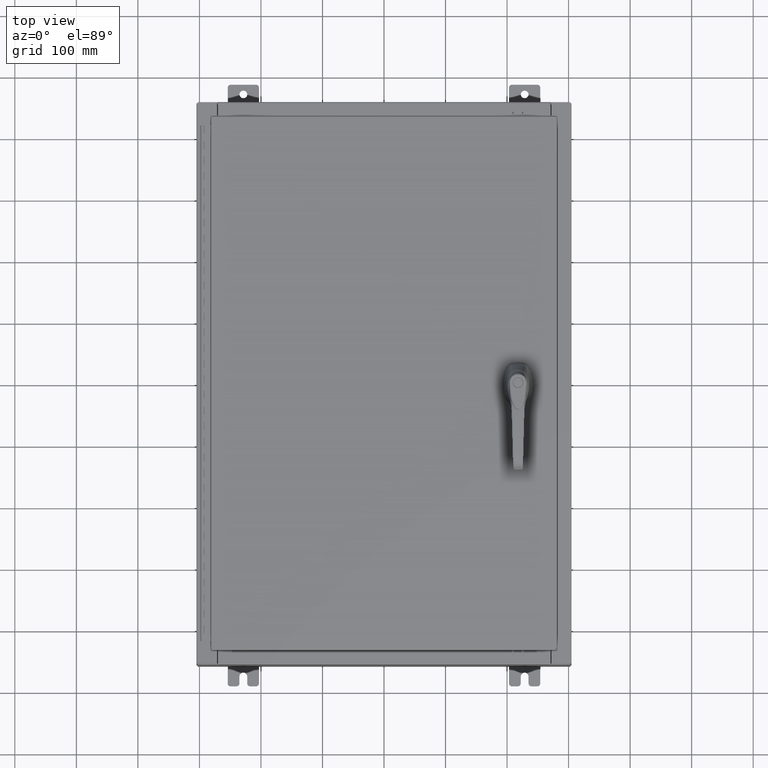
[diagram: clean part render]
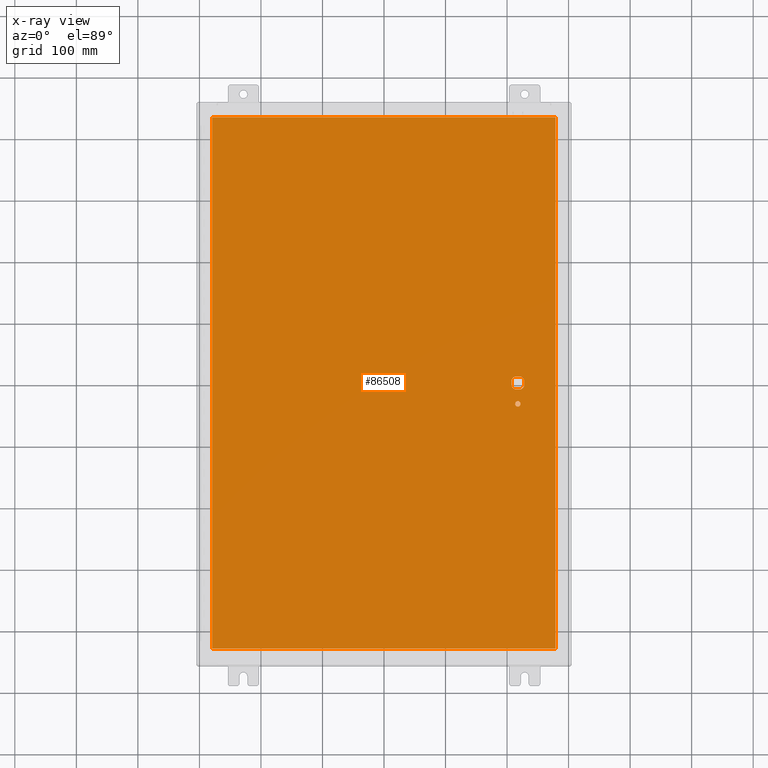
[diagram: x-ray — body ghosted, one internal face saturated and labeled with its STEP entity id]
A machine part, top view, then the same camera in x-ray: the body is ghosted and one INTERNAL B-rep face — a face not visible from any outside direction — is saturated and labeled: STEP entity #86508.
In plain terms, the highlighted planar face has unit normal (0, 0, -1).
Its self-contained STEP definition (entity closure, byte-faithful):
#218 = EDGE_CURVE ( 'NONE', #17651, #96997, #37008, .T. ) ;
#1229 = VERTEX_POINT ( 'NONE', #116180 ) ;
#3981 = VERTEX_POINT ( 'NONE', #69366 ) ;
#4173 = AXIS2_PLACEMENT_3D ( 'NONE', #54961, #26343, #17231 ) ;
#4506 = CIRCLE ( 'NONE', #71050, 0.4499999999999156900 ) ;
#4548 = ORIENTED_EDGE ( 'NONE', *, *, #111460, .T. ) ;
#5235 = EDGE_LOOP ( 'NONE', ( #45908, #71363, #73015, #34304, #113249, #4548, #22421, #60410 ) ) ;
#5258 = CARTESIAN_POINT ( 'NONE',  ( 8.778227370756305000, -0.4029999999999252000, -0.07470000000000003000 ) ) ;
#6845 = DIRECTION ( 'NONE',  ( -1.000000000000000000, 0.0000000000000000000, 0.0000000000000000000 ) ) ;
#7693 = PLANE ( 'NONE',  #4173 ) ;
#9464 = VERTEX_POINT ( 'NONE', #28157 ) ;
#11452 = VECTOR ( 'NONE', #66983, 39.37007874015748100 ) ;
#11528 = EDGE_CURVE ( 'NONE', #1229, #3981, #47323, .T. ) ;
#12139 = CARTESIAN_POINT ( 'NONE',  ( 10.99029999999999600, 17.00630000000000700, -0.07470000000000000300 ) ) ;
#13215 = VERTEX_POINT ( 'NONE', #71026 ) ;
#13580 = AXIS2_PLACEMENT_3D ( 'NONE', #46533, #113226, #56095 ) ;
#16855 = LINE ( 'NONE', #85140, #118096 ) ;
#17231 = DIRECTION ( 'NONE',  ( -1.000000000000000000, 0.0000000000000000000, -0.0000000000000000000 ) ) ;
#17651 = VERTEX_POINT ( 'NONE', #83940 ) ;
#20019 = VERTEX_POINT ( 'NONE', #35618 ) ;
#21808 = CARTESIAN_POINT ( 'NONE',  ( 8.577999999999995900, -1.338000000000000100, -0.07470000000000003000 ) ) ;
#22421 = ORIENTED_EDGE ( 'NONE', *, *, #47224, .T. ) ;
#26039 = AXIS2_PLACEMENT_3D ( 'NONE', #91929, #92649, #92503 ) ;
#26290 = CARTESIAN_POINT ( 'NONE',  ( 8.577999999999995900, 0.0000000000000000000, -0.07470000000000003000 ) ) ;
#26343 = DIRECTION ( 'NONE',  ( 0.0000000000000000000, 0.0000000000000000000, -1.000000000000000000 ) ) ;
#26356 = VECTOR ( 'NONE', #86280, 39.37007874015748100 ) ;
#27109 = VECTOR ( 'NONE', #115950, 39.37007874015748100 ) ;
#27388 = CARTESIAN_POINT ( 'NONE',  ( -10.99030000000000500, 17.00630000000000700, -0.07470000000000347200 ) ) ;
#28157 = CARTESIAN_POINT ( 'NONE',  ( 8.980999999999921700, -0.2002273707563075900, -0.07470000000000003000 ) ) ;
#30152 = ORIENTED_EDGE ( 'NONE', *, *, #107668, .T. ) ;
#30684 = CARTESIAN_POINT ( 'NONE',  ( 0.0000000000000000000, -0.4029999999999252000, -0.07470000000000003000 ) ) ;
#31392 = DIRECTION ( 'NONE',  ( -1.000000000000000000, 0.0000000000000000000, 0.0000000000000000000 ) ) ;
#33377 = CARTESIAN_POINT ( 'NONE',  ( 8.778227370756305000, 0.4029999999999250300, -0.07470000000000003000 ) ) ;
#34304 = ORIENTED_EDGE ( 'NONE', *, *, #45473, .T. ) ;
#34821 = FACE_BOUND ( 'NONE', #5235, .T. ) ;
#34926 = EDGE_LOOP ( 'NONE', ( #116123, #121981, #72663, #112729 ) ) ;
#35618 = CARTESIAN_POINT ( 'NONE',  ( 8.749499999999997600, -1.338000000000000100, -0.07470000000000003000 ) ) ;
#35854 = DIRECTION ( 'NONE',  ( -1.000000000000000000, 8.881784197001256300E-016, 0.0000000000000000000 ) ) ;
#37008 = CIRCLE ( 'NONE', #26039, 0.4499999999999156900 ) ;
#37356 = EDGE_CURVE ( 'NONE', #84634, #1229, #98808, .T. ) ;
#38486 = CARTESIAN_POINT ( 'NONE',  ( 8.980999999999921700, 2.450686610769031800E-014, -0.07470000000000003000 ) ) ;
#38929 = VECTOR ( 'NONE', #64896, 39.37007874015748100 ) ;
#39896 = CIRCLE ( 'NONE', #123201, 0.1715000000000011500 ) ;
#40499 = VERTEX_POINT ( 'NONE', #76355 ) ;
#42459 = CIRCLE ( 'NONE', #13580, 0.4499999999999156900 ) ;
#45473 = EDGE_CURVE ( 'NONE', #96997, #118364, #120064, .T. ) ;
#45908 = ORIENTED_EDGE ( 'NONE', *, *, #55472, .T. ) ;
#46099 = DIRECTION ( 'NONE',  ( -0.0000000000000000000, -0.0000000000000000000, 1.000000000000000000 ) ) ;
#46401 = CARTESIAN_POINT ( 'NONE',  ( 8.577999999999995900, 0.0000000000000000000, -0.07470000000000003000 ) ) ;
#46533 = CARTESIAN_POINT ( 'NONE',  ( 8.577999999999995900, 0.0000000000000000000, -0.07470000000000003000 ) ) ;
#46989 = VECTOR ( 'NONE', #6845, 39.37007874015748100 ) ;
#47224 = EDGE_CURVE ( 'NONE', #40499, #79952, #69015, .T. ) ;
#47323 = LINE ( 'NONE', #56748, #117434 ) ;
#47364 = DIRECTION ( 'NONE',  ( -1.000000000000000000, -0.0000000000000000000, -0.0000000000000000000 ) ) ;
#48009 = EDGE_CURVE ( 'NONE', #118364, #13215, #42459, .T. ) ;
#48472 = CARTESIAN_POINT ( 'NONE',  ( 8.175000000000070000, 0.0000000000000000000, -0.07470000000000003000 ) ) ;
#50458 = ORIENTED_EDGE ( 'NONE', *, *, #57644, .T. ) ;
#51517 = VERTEX_POINT ( 'NONE', #12139 ) ;
#52008 = EDGE_CURVE ( 'NONE', #51517, #84634, #16855, .T. ) ;
#52914 = EDGE_CURVE ( 'NONE', #79952, #90591, #77572, .T. ) ;
#54570 = LINE ( 'NONE', #48472, #26356 ) ;
#54961 = CARTESIAN_POINT ( 'NONE',  ( 0.0000000000000000000, 0.0000000000000000000, -0.07470000000000000300 ) ) ;
#55428 = CARTESIAN_POINT ( 'NONE',  ( 10.99029999999999600, -17.00629999999999200, -0.07470000000000019700 ) ) ;
#55472 = EDGE_CURVE ( 'NONE', #90591, #9464, #4506, .T. ) ;
#55960 = DIRECTION ( 'NONE',  ( -1.000000000000000000, 1.776356839400251300E-015, 0.0000000000000000000 ) ) ;
#56095 = DIRECTION ( 'NONE',  ( -1.000000000000000000, 0.0000000000000000000, 0.0000000000000000000 ) ) ;
#56748 = CARTESIAN_POINT ( 'NONE',  ( -10.99030000000000000, -17.00629999999999600, -0.07470000000000019700 ) ) ;
#57055 = FACE_OUTER_BOUND ( 'NONE', #34926, .T. ) ;
#57564 = DIRECTION ( 'NONE',  ( 1.000000000000000000, -0.0000000000000000000, -0.0000000000000000000 ) ) ;
#57644 = EDGE_CURVE ( 'NONE', #60792, #20019, #39896, .T. ) ;
#59418 = EDGE_CURVE ( 'NONE', #17651, #9464, #61827, .T. ) ;
#60410 = ORIENTED_EDGE ( 'NONE', *, *, #52914, .T. ) ;
#60792 = VERTEX_POINT ( 'NONE', #117199 ) ;
#61827 = LINE ( 'NONE', #38486, #11452 ) ;
#62954 = FACE_BOUND ( 'NONE', #92080, .T. ) ;
#63601 = CARTESIAN_POINT ( 'NONE',  ( 0.0000000000000000000, 0.4029999999999252000, -0.07470000000000003000 ) ) ;
#64896 = DIRECTION ( 'NONE',  ( 0.0000000000000000000, 1.000000000000000000, 0.0000000000000000000 ) ) ;
#66983 = DIRECTION ( 'NONE',  ( 2.728745808672812900E-015, -1.000000000000000000, 0.0000000000000000000 ) ) ;
#68956 = CARTESIAN_POINT ( 'NONE',  ( -10.99030000000000100, 17.00630000000000700, -0.07470000000000000300 ) ) ;
#69015 = CIRCLE ( 'NONE', #103471, 0.4499999999999156900 ) ;
#69366 = CARTESIAN_POINT ( 'NONE',  ( 10.99029999999999600, -17.00629999999999600, -0.07470000000000000300 ) ) ;
#71026 = CARTESIAN_POINT ( 'NONE',  ( 8.175000000000070000, 0.2002273707563080300, -0.07470000000000003000 ) ) ;
#71050 = AXIS2_PLACEMENT_3D ( 'NONE', #46401, #113083, #55960 ) ;
#71363 = ORIENTED_EDGE ( 'NONE', *, *, #59418, .F. ) ;
#72663 = ORIENTED_EDGE ( 'NONE', *, *, #37356, .F. ) ;
#73015 = ORIENTED_EDGE ( 'NONE', *, *, #218, .T. ) ;
#73378 = VECTOR ( 'NONE', #93818, 39.37007874015748100 ) ;
#76355 = CARTESIAN_POINT ( 'NONE',  ( 8.175000000000070000, -0.2002273707563079800, -0.07470000000000003000 ) ) ;
#77572 = LINE ( 'NONE', #30684, #27109 ) ;
#79952 = VERTEX_POINT ( 'NONE', #109916 ) ;
#83940 = CARTESIAN_POINT ( 'NONE',  ( 8.980999999999921700, 0.2002273707563080300, -0.07470000000000003000 ) ) ;
#84634 = VERTEX_POINT ( 'NONE', #68956 ) ;
#85140 = CARTESIAN_POINT ( 'NONE',  ( 10.99029999999999800, 17.00630000000000700, -0.07470000000000019700 ) ) ;
#86280 = DIRECTION ( 'NONE',  ( 0.0000000000000000000, -1.000000000000000000, 0.0000000000000000000 ) ) ;
#86508 = ADVANCED_FACE ( 'NONE', ( #62954, #57055, #34821 ), #7693, .T. ) ;
#88161 = DIRECTION ( 'NONE',  ( -0.0000000000000000000, -0.0000000000000000000, 1.000000000000000000 ) ) ;
#89379 = LINE ( 'NONE', #55428, #38929 ) ;
#90591 = VERTEX_POINT ( 'NONE', #5258 ) ;
#91929 = CARTESIAN_POINT ( 'NONE',  ( 8.577999999999995900, 0.0000000000000000000, -0.07470000000000003000 ) ) ;
#92080 = EDGE_LOOP ( 'NONE', ( #30152, #50458 ) ) ;
#92503 = DIRECTION ( 'NONE',  ( -1.000000000000000000, 0.0000000000000000000, 0.0000000000000000000 ) ) ;
#92649 = DIRECTION ( 'NONE',  ( -0.0000000000000000000, -0.0000000000000000000, 1.000000000000000000 ) ) ;
#92741 = DIRECTION ( 'NONE',  ( -0.0000000000000000000, -0.0000000000000000000, 1.000000000000000000 ) ) ;
#93730 = CARTESIAN_POINT ( 'NONE',  ( 8.377772629243686700, 0.4029999999999252000, -0.07470000000000003000 ) ) ;
#93818 = DIRECTION ( 'NONE',  ( 0.0000000000000000000, -1.000000000000000000, 0.0000000000000000000 ) ) ;
#96997 = VERTEX_POINT ( 'NONE', #33377 ) ;
#98277 = CIRCLE ( 'NONE', #120952, 0.1715000000000011500 ) ;
#98808 = LINE ( 'NONE', #27388, #73378 ) ;
#103160 = CARTESIAN_POINT ( 'NONE',  ( 8.577999999999995900, -1.338000000000000100, -0.07470000000000003000 ) ) ;
#103471 = AXIS2_PLACEMENT_3D ( 'NONE', #26290, #92741, #35854 ) ;
#107137 = EDGE_CURVE ( 'NONE', #3981, #51517, #89379, .T. ) ;
#107668 = EDGE_CURVE ( 'NONE', #20019, #60792, #98277, .T. ) ;
#109916 = CARTESIAN_POINT ( 'NONE',  ( 8.377772629243686700, -0.4029999999999250300, -0.07470000000000003000 ) ) ;
#111460 = EDGE_CURVE ( 'NONE', #13215, #40499, #54570, .T. ) ;
#112729 = ORIENTED_EDGE ( 'NONE', *, *, #52008, .F. ) ;
#112764 = DIRECTION ( 'NONE',  ( -1.000000000000000000, 0.0000000000000000000, 0.0000000000000000000 ) ) ;
#113083 = DIRECTION ( 'NONE',  ( -0.0000000000000000000, -0.0000000000000000000, 1.000000000000000000 ) ) ;
#113226 = DIRECTION ( 'NONE',  ( -0.0000000000000000000, -0.0000000000000000000, 1.000000000000000000 ) ) ;
#113249 = ORIENTED_EDGE ( 'NONE', *, *, #48009, .T. ) ;
#115950 = DIRECTION ( 'NONE',  ( 1.000000000000000000, 0.0000000000000000000, 0.0000000000000000000 ) ) ;
#116123 = ORIENTED_EDGE ( 'NONE', *, *, #107137, .F. ) ;
#116180 = CARTESIAN_POINT ( 'NONE',  ( -10.99030000000000000, -17.00629999999999600, -0.07470000000000000300 ) ) ;
#117199 = CARTESIAN_POINT ( 'NONE',  ( 8.406499999999994100, -1.338000000000000100, -0.07470000000000003000 ) ) ;
#117434 = VECTOR ( 'NONE', #57564, 39.37007874015748100 ) ;
#118096 = VECTOR ( 'NONE', #47364, 39.37007874015748100 ) ;
#118364 = VERTEX_POINT ( 'NONE', #93730 ) ;
#120064 = LINE ( 'NONE', #63601, #46989 ) ;
#120952 = AXIS2_PLACEMENT_3D ( 'NONE', #21808, #88161, #31392 ) ;
#121981 = ORIENTED_EDGE ( 'NONE', *, *, #11528, .F. ) ;
#123201 = AXIS2_PLACEMENT_3D ( 'NONE', #103160, #46099, #112764 ) ;